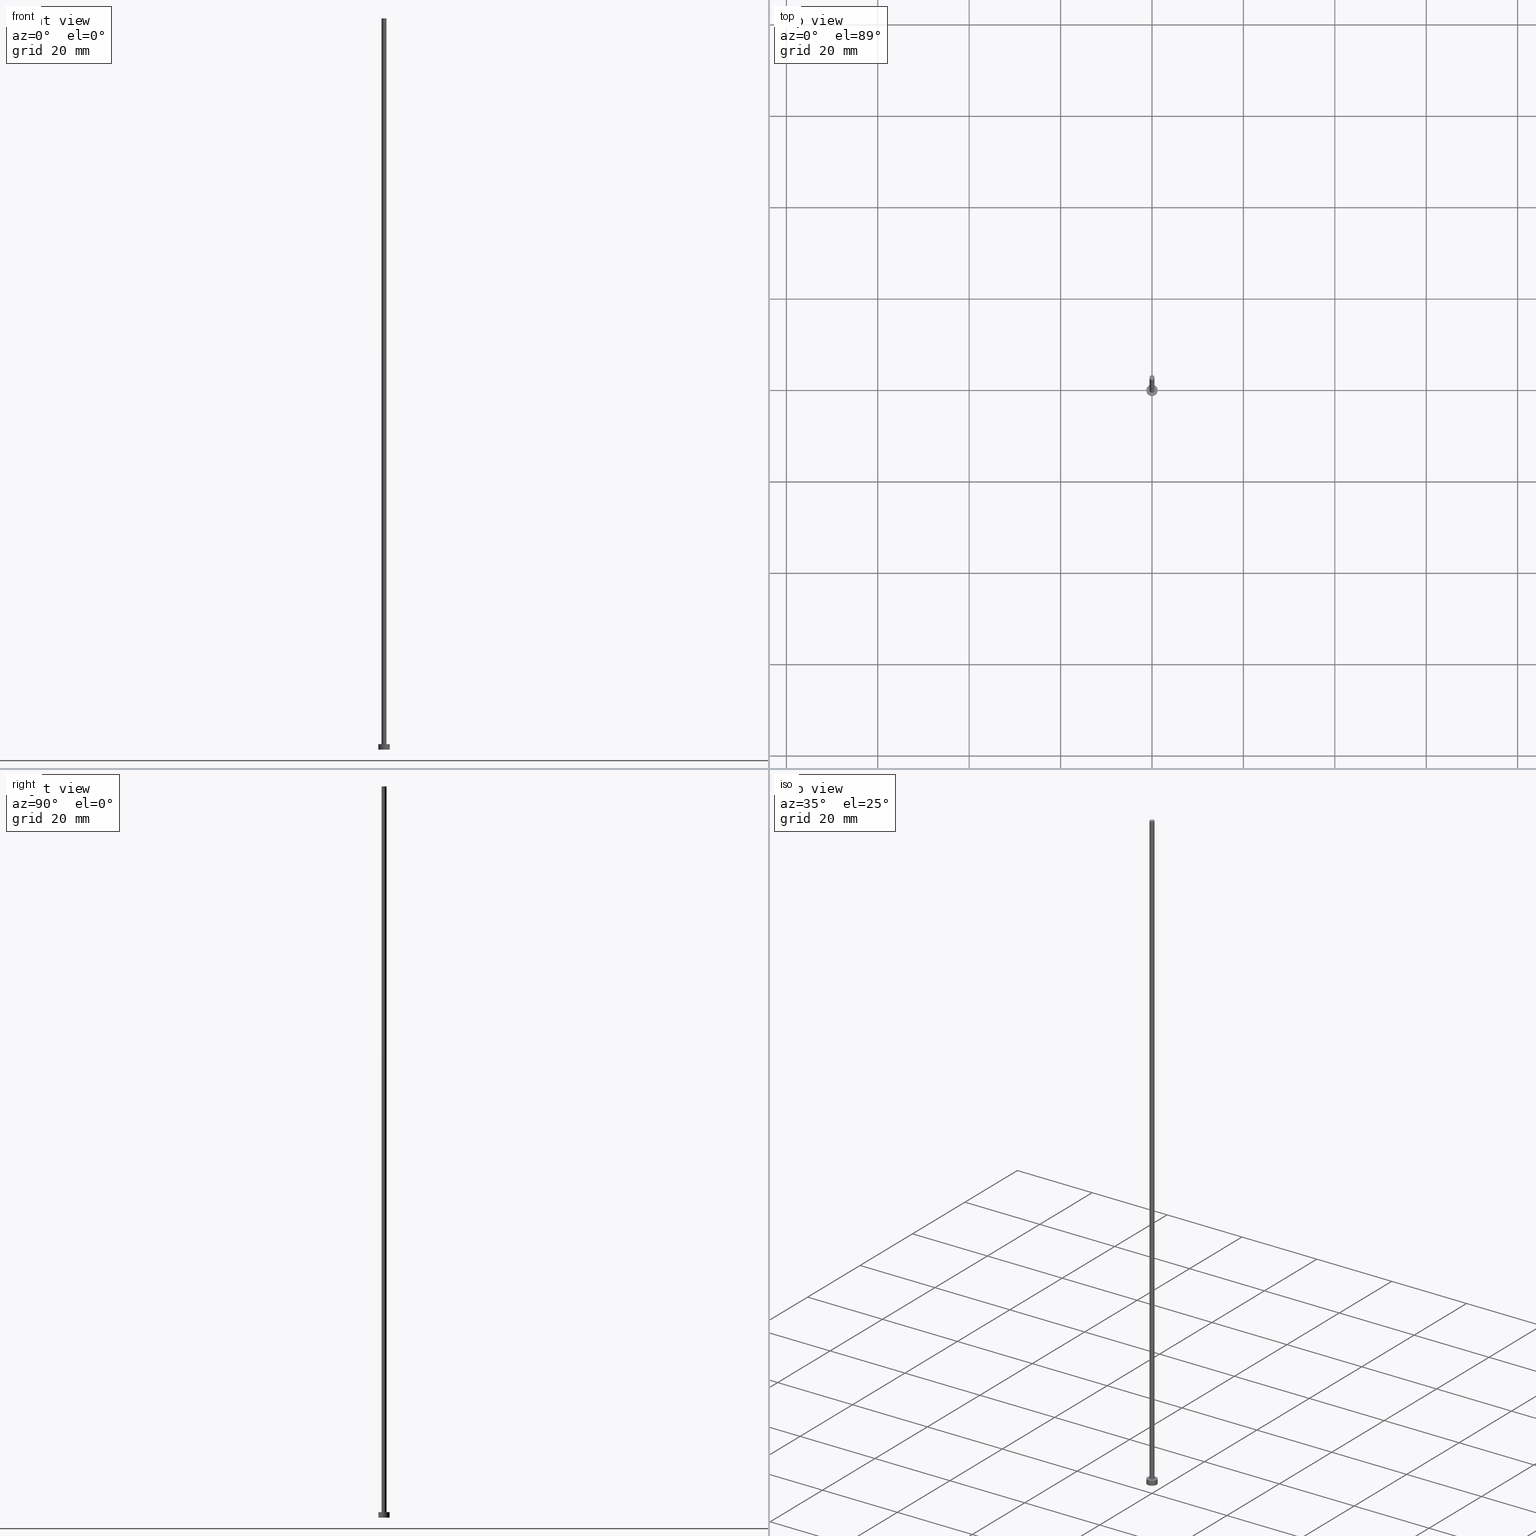
[diagram: canonical four-view strip — front | top / right | iso, engineering-drawing reading convention]
A machine part, canonical four-view strip (front | top / right | iso — engineering-drawing reading convention). The complete STEP part file that produces these views, byte-faithful:
ISO-10303-21;
HEADER;
FILE_DESCRIPTION (( 'STEP AP203' ),
    '1' );
FILE_NAME ('3fdd.STEP',
    '2023-02-12T12:59:40',
    ( '' ),
    ( '' ),
    'SwSTEP 2.0',
    'SolidWorks 2019',
    '' );
FILE_SCHEMA (( 'CONFIG_CONTROL_DESIGN' ));
ENDSEC;

DATA;
#1 = EDGE_CURVE ( 'NONE', #11, #152, #46, .T. ) ;
#2 = ORIENTED_EDGE ( 'NONE', *, *, #198, .F. ) ;
#3 = APPROVAL_STATUS ( 'not_yet_approved' ) ;
#4 = PERSON ( 'NEUR�EN�', 'NEUR�EN�', 'NEUR�EN�', ('NEUR�EN�'), ('NEUR�EN�'), ('NEUR�EN�') ) ;
#5 = MANIFOLD_SOLID_BREP ( 'P�idat vysunut�m3', #92 ) ;
#6 = APPROVAL_DATE_TIME ( #153, #246 ) ;
#7 = APPROVAL_STATUS ( 'not_yet_approved' ) ;
#8 = SECURITY_CLASSIFICATION_LEVEL ( 'unclassified' ) ;
#9 = EDGE_LOOP ( 'NONE', ( #45, #143 ) ) ;
#10 = DIRECTION ( 'NONE',  ( 1.000000000000000000, 0.000000000000000000, 0.000000000000000000 ) ) ;
#11 = VERTEX_POINT ( 'NONE', #234 ) ;
#12 = AXIS2_PLACEMENT_3D ( 'NONE', #184, #169, #216 ) ;
#13 = FACE_OUTER_BOUND ( 'NONE', #147, .T. ) ;
#14 = ADVANCED_FACE ( 'NONE', ( #199 ), #253, .T. ) ;
#15 = AXIS2_PLACEMENT_3D ( 'NONE', #20, #102, #127 ) ;
#16 = VECTOR ( 'NONE', #43, 1000.000000000000000 ) ;
#17 = APPLICATION_PROTOCOL_DEFINITION ( 'international standard', 'config_control_design', 1994, #211 ) ;
#18 = CARTESIAN_POINT ( 'NONE',  ( 1.250000000000000000, 1.530808498934191571E-16, 1.199999999999999956 ) ) ;
#19 = EDGE_LOOP ( 'NONE', ( #2, #224, #161, #158 ) ) ;
#20 = CARTESIAN_POINT ( 'NONE',  ( 0.000000000000000000, 0.000000000000000000, 160.0000000000000284 ) ) ;
#21 = ORIENTED_EDGE ( 'NONE', *, *, #69, .T. ) ;
#22 = CARTESIAN_POINT ( 'NONE',  ( 0.000000000000000000, 0.000000000000000000, 1.199999999999999956 ) ) ;
#23 = APPROVAL_ROLE ( '' ) ;
#24 = ADVANCED_FACE ( 'NONE', ( #200 ), #215, .F. ) ;
#25 = COORDINATED_UNIVERSAL_TIME_OFFSET ( 1, 0, .AHEAD. ) ;
#26 = SECURITY_CLASSIFICATION ( '', '', #8 ) ;
#27 = PERSON_AND_ORGANIZATION ( #4, #134 ) ;
#28 = PRODUCT_DEFINITION_SHAPE ( 'NONE', 'NONE',  #163 ) ;
#29 = AXIS2_PLACEMENT_3D ( 'NONE', #235, #83, #255 ) ;
#30 = CIRCLE ( 'NONE', #182, 1.250000000000000000 ) ;
#31 = ADVANCED_BREP_SHAPE_REPRESENTATION ( '3fdd', ( #5, #170 ), #144 ) ;
#32 = ADVANCED_FACE ( 'NONE', ( #186 ), #142, .T. ) ;
#33 = PERSON_AND_ORGANIZATION ( #4, #134 ) ;
#34 = DIRECTION ( 'NONE',  ( 0.000000000000000000, 0.000000000000000000, 1.000000000000000000 ) ) ;
#35 = VECTOR ( 'NONE', #196, 1000.000000000000000 ) ;
#36 = CARTESIAN_POINT ( 'NONE',  ( 1.250000000000000000, 1.530808498934191571E-16, 1.199999999999999956 ) ) ;
#37 = DESIGN_CONTEXT ( 'detailed design', #52, 'design' ) ;
#38 = DIRECTION ( 'NONE',  ( -0.000000000000000000, -0.000000000000000000, -1.000000000000000000 ) ) ;
#39 = DIRECTION ( 'NONE',  ( 0.000000000000000000, 0.000000000000000000, 1.000000000000000000 ) ) ;
#40 = CC_DESIGN_PERSON_AND_ORGANIZATION_ASSIGNMENT ( #175, #93, ( #26 ) ) ;
#41 = ORIENTED_EDGE ( 'NONE', *, *, #198, .T. ) ;
#42 = CIRCLE ( 'NONE', #192, 0.5500000000000000444 ) ;
#43 = DIRECTION ( 'NONE',  ( -0.000000000000000000, -0.000000000000000000, -1.000000000000000000 ) ) ;
#44 = CC_DESIGN_PERSON_AND_ORGANIZATION_ASSIGNMENT ( #68, #244, ( #163 ) ) ;
#45 = ORIENTED_EDGE ( 'NONE', *, *, #245, .T. ) ;
#46 = LINE ( 'NONE', #130, #35 ) ;
#47 = CC_DESIGN_PERSON_AND_ORGANIZATION_ASSIGNMENT ( #27, #51, ( #119 ) ) ;
#48 = APPROVAL_ROLE ( '' ) ;
#49 = CC_DESIGN_SECURITY_CLASSIFICATION ( #26, ( #119 ) ) ;
#50 = LOCAL_TIME ( 13, 59, 40.00000000000000000, #53 ) ;
#51 = PERSON_AND_ORGANIZATION_ROLE ( 'creator' ) ;
#52 = APPLICATION_CONTEXT ( 'configuration controlled 3d designs of mechanical parts and assemblies' ) ;
#53 = COORDINATED_UNIVERSAL_TIME_OFFSET ( 1, 0, .AHEAD. ) ;
#54 = EDGE_CURVE ( 'NONE', #105, #120, #75, .T. ) ;
#55 = EDGE_LOOP ( 'NONE', ( #168, #249 ) ) ;
#56 = EDGE_CURVE ( 'NONE', #60, #124, #208, .T. ) ;
#57 = CARTESIAN_POINT ( 'NONE',  ( 0.000000000000000000, 0.000000000000000000, 160.0000000000000284 ) ) ;
#58 = PRODUCT_RELATED_PRODUCT_CATEGORY ( 'detail', '', ( #155 ) ) ;
#59 = VERTEX_POINT ( 'NONE', #229 ) ;
#60 = VERTEX_POINT ( 'NONE', #250 ) ;
#61 = CARTESIAN_POINT ( 'NONE',  ( 0.000000000000000000, 0.000000000000000000, 1.199999999999999956 ) ) ;
#62 = DIRECTION ( 'NONE',  ( 1.000000000000000000, 0.000000000000000000, -0.000000000000000000 ) ) ;
#63 = LINE ( 'NONE', #214, #16 ) ;
#64 = APPROVAL_PERSON_ORGANIZATION ( #243, #246, #48 ) ;
#65 = CARTESIAN_POINT ( 'NONE',  ( 0.000000000000000000, 0.000000000000000000, 160.0000000000000284 ) ) ;
#66 = EDGE_CURVE ( 'NONE', #59, #137, #30, .T. ) ;
#67 = APPROVAL ( #7, 'NEUR�EN�' ) ;
#68 = PERSON_AND_ORGANIZATION ( #4, #134 ) ;
#69 = EDGE_CURVE ( 'NONE', #124, #152, #241, .T. ) ;
#70 = ORIENTED_EDGE ( 'NONE', *, *, #151, .F. ) ;
#71 = CARTESIAN_POINT ( 'NONE',  ( 0.5500000000000000444, 6.735557395310442516E-17, 1.199999999999999956 ) ) ;
#72 = CALENDAR_DATE ( 2023, 12, 2 ) ;
#73 = DIRECTION ( 'NONE',  ( 1.000000000000000000, 0.000000000000000000, 0.000000000000000000 ) ) ;
#74 = DIRECTION ( 'NONE',  ( -0.000000000000000000, -0.000000000000000000, -1.000000000000000000 ) ) ;
#75 = CIRCLE ( 'NONE', #218, 1.250000000000000000 ) ;
#76 = ORIENTED_EDGE ( 'NONE', *, *, #1, .T. ) ;
#77 = DIRECTION ( 'NONE',  ( 1.000000000000000000, 0.000000000000000000, -0.000000000000000000 ) ) ;
#78 = CARTESIAN_POINT ( 'NONE',  ( 0.000000000000000000, 0.000000000000000000, 0.000000000000000000 ) ) ;
#79 = ORIENTED_EDGE ( 'NONE', *, *, #56, .T. ) ;
#80 = PERSON_AND_ORGANIZATION ( #4, #134 ) ;
#81 = AXIS2_PLACEMENT_3D ( 'NONE', #126, #104, #62 ) ;
#82 = LOCAL_TIME ( 13, 59, 40.00000000000000000, #189 ) ;
#83 = DIRECTION ( 'NONE',  ( 0.000000000000000000, 0.000000000000000000, 1.000000000000000000 ) ) ;
#84 = CARTESIAN_POINT ( 'NONE',  ( -1.250000000000000000, 0.000000000000000000, 1.199999999999999956 ) ) ;
#85 = CARTESIAN_POINT ( 'NONE',  ( 0.000000000000000000, 0.000000000000000000, 1.199999999999999956 ) ) ;
#86 = APPROVAL ( #112, 'NEUR�EN�' ) ;
#87 = AXIS2_PLACEMENT_3D ( 'NONE', #57, #74, #118 ) ;
#88 = CALENDAR_DATE ( 2023, 12, 2 ) ;
#89 = CYLINDRICAL_SURFACE ( 'NONE', #185, 1.250000000000000000 ) ;
#90 = CALENDAR_DATE ( 2023, 12, 2 ) ;
#91 = DATE_AND_TIME ( #221, #82 ) ;
#92 = CLOSED_SHELL ( 'NONE', ( #106, #140, #177, #190, #24, #14, #32 ) ) ;
#93 = PERSON_AND_ORGANIZATION_ROLE ( 'classification_officer' ) ;
#94 = ORIENTED_EDGE ( 'NONE', *, *, #66, .T. ) ;
#95 = CARTESIAN_POINT ( 'NONE',  ( 0.000000000000000000, 0.000000000000000000, 0.000000000000000000 ) ) ;
#96 = ORIENTED_EDGE ( 'NONE', *, *, #242, .F. ) ;
#97 = AXIS2_PLACEMENT_3D ( 'NONE', #85, #150, #128 ) ;
#98 = AXIS2_PLACEMENT_3D ( 'NONE', #95, #191, #181 ) ;
#99 = EDGE_CURVE ( 'NONE', #137, #59, #206, .T. ) ;
#100 = CARTESIAN_POINT ( 'NONE',  ( 0.000000000000000000, 0.000000000000000000, 160.0000000000000284 ) ) ;
#101 = DIRECTION ( 'NONE',  ( -0.000000000000000000, -0.000000000000000000, -1.000000000000000000 ) ) ;
#102 = DIRECTION ( 'NONE',  ( 0.000000000000000000, 0.000000000000000000, 1.000000000000000000 ) ) ;
#103 = ORIENTED_EDGE ( 'NONE', *, *, #188, .F. ) ;
#104 = DIRECTION ( 'NONE',  ( 0.000000000000000000, 0.000000000000000000, 1.000000000000000000 ) ) ;
#105 = VERTEX_POINT ( 'NONE', #36 ) ;
#106 = ADVANCED_FACE ( 'NONE', ( #13 ), #138, .T. ) ;
#107 = CC_DESIGN_APPROVAL ( #67, ( #163 ) ) ;
#108 = APPROVAL_DATE_TIME ( #204, #86 ) ;
#109 = PERSON_AND_ORGANIZATION_ROLE ( 'design_supplier' ) ;
#110 = CC_DESIGN_APPROVAL ( #246, ( #26 ) ) ;
#111 = ORIENTED_EDGE ( 'NONE', *, *, #151, .T. ) ;
#112 = APPROVAL_STATUS ( 'not_yet_approved' ) ;
#113 = EDGE_CURVE ( 'NONE', #120, #137, #63, .T. ) ;
#114 = VECTOR ( 'NONE', #38, 1000.000000000000000 ) ;
#115 = CC_DESIGN_DATE_AND_TIME_ASSIGNMENT ( #205, #154, ( #163 ) ) ;
#116 = ORIENTED_EDGE ( 'NONE', *, *, #242, .T. ) ;
#117 = DIRECTION ( 'NONE',  ( 0.000000000000000000, 0.000000000000000000, 1.000000000000000000 ) ) ;
#118 = DIRECTION ( 'NONE',  ( -1.000000000000000000, 0.000000000000000000, 0.000000000000000000 ) ) ;
#119 = PRODUCT_DEFINITION_FORMATION_WITH_SPECIFIED_SOURCE ( 'LIBOVOLN�', '', #155, .NOT_KNOWN. ) ;
#120 = VERTEX_POINT ( 'NONE', #84 ) ;
#121 = CARTESIAN_POINT ( 'NONE',  ( 0.000000000000000000, 0.000000000000000000, 0.000000000000000000 ) ) ;
#122 = DIRECTION ( 'NONE',  ( 1.000000000000000000, 0.000000000000000000, 0.000000000000000000 ) ) ;
#123 = DIRECTION ( 'NONE',  ( -0.000000000000000000, -0.000000000000000000, -1.000000000000000000 ) ) ;
#124 = VERTEX_POINT ( 'NONE', #71 ) ;
#125 = MECHANICAL_CONTEXT ( 'NONE', #211, 'mechanical' ) ;
#126 = CARTESIAN_POINT ( 'NONE',  ( 0.000000000000000000, 0.000000000000000000, 0.000000000000000000 ) ) ;
#127 = DIRECTION ( 'NONE',  ( 1.000000000000000000, 0.000000000000000000, 0.000000000000000000 ) ) ;
#128 = DIRECTION ( 'NONE',  ( 1.000000000000000000, 0.000000000000000000, -0.000000000000000000 ) ) ;
#129 = EDGE_LOOP ( 'NONE', ( #166, #96, #76, #213 ) ) ;
#130 = CARTESIAN_POINT ( 'NONE',  ( -0.5500000000000000444, 0.000000000000000000, 160.0000000000000284 ) ) ;
#131 = CALENDAR_DATE ( 2023, 12, 2 ) ;
#132 = FACE_OUTER_BOUND ( 'NONE', #226, .T. ) ;
#133 = ORIENTED_EDGE ( 'NONE', *, *, #69, .F. ) ;
#134 = ORGANIZATION ( 'NEUR�EN�', 'NEUR�EN�', '' ) ;
#135 = APPROVAL_DATE_TIME ( #91, #67 ) ;
#136 = CIRCLE ( 'NONE', #15, 0.5500000000000000444 ) ;
#137 = VERTEX_POINT ( 'NONE', #173 ) ;
#138 = CYLINDRICAL_SURFACE ( 'NONE', #87, 0.5500000000000000444 ) ;
#139 = DIRECTION ( 'NONE',  ( 1.000000000000000000, 0.000000000000000000, 0.000000000000000000 ) ) ;
#140 = ADVANCED_FACE ( 'NONE', ( #132 ), #89, .T. ) ;
#141 = CC_DESIGN_DATE_AND_TIME_ASSIGNMENT ( #223, #174, ( #26 ) ) ;
#142 = PLANE ( 'NONE',  #230 ) ;
#143 = ORIENTED_EDGE ( 'NONE', *, *, #54, .T. ) ;
#144 =( GEOMETRIC_REPRESENTATION_CONTEXT ( 3 ) GLOBAL_UNCERTAINTY_ASSIGNED_CONTEXT ( ( #160 ) ) GLOBAL_UNIT_ASSIGNED_CONTEXT ( ( #238, #217, #176 ) ) REPRESENTATION_CONTEXT ( 'NONE', 'WORKASPACE' ) );
#145 = CC_DESIGN_PERSON_AND_ORGANIZATION_ASSIGNMENT ( #33, #228, ( #155 ) ) ;
#146 = APPLICATION_PROTOCOL_DEFINITION ( 'international standard', 'config_control_design', 1994, #52 ) ;
#147 = EDGE_LOOP ( 'NONE', ( #70, #79, #21, #178 ) ) ;
#148 = AXIS2_PLACEMENT_3D ( 'NONE', #22, #101, #187 ) ;
#149 = AXIS2_PLACEMENT_3D ( 'NONE', #65, #183, #232 ) ;
#150 = DIRECTION ( 'NONE',  ( 0.000000000000000000, 0.000000000000000000, 1.000000000000000000 ) ) ;
#151 = EDGE_CURVE ( 'NONE', #60, #11, #42, .T. ) ;
#152 = VERTEX_POINT ( 'NONE', #162 ) ;
#153 = DATE_AND_TIME ( #131, #50 ) ;
#154 = DATE_TIME_ROLE ( 'creation_date' ) ;
#155 = PRODUCT ( '3fdd', '3fdd', '', ( #125 ) ) ;
#156 = CC_DESIGN_APPROVAL ( #86, ( #119 ) ) ;
#157 = PERSON_AND_ORGANIZATION ( #4, #134 ) ;
#158 = ORIENTED_EDGE ( 'NONE', *, *, #99, .T. ) ;
#159 = DIRECTION ( 'NONE',  ( -1.000000000000000000, 0.000000000000000000, 0.000000000000000000 ) ) ;
#160 = UNCERTAINTY_MEASURE_WITH_UNIT (LENGTH_MEASURE( 1.000000000000000082E-05 ), #238, 'distance_accuracy_value', 'NONE');
#161 = ORIENTED_EDGE ( 'NONE', *, *, #113, .T. ) ;
#162 = CARTESIAN_POINT ( 'NONE',  ( -0.5500000000000000444, 0.000000000000000000, 1.199999999999999956 ) ) ;
#163 = PRODUCT_DEFINITION ( 'NEZN�M�', '', #119, #37 ) ;
#164 = APPROVAL_ROLE ( '' ) ;
#165 = CARTESIAN_POINT ( 'NONE',  ( 0.000000000000000000, 0.000000000000000000, 1.199999999999999956 ) ) ;
#166 = ORIENTED_EDGE ( 'NONE', *, *, #56, .F. ) ;
#167 = EDGE_LOOP ( 'NONE', ( #103, #133 ) ) ;
#168 = ORIENTED_EDGE ( 'NONE', *, *, #99, .F. ) ;
#169 = DIRECTION ( 'NONE',  ( 0.000000000000000000, 0.000000000000000000, 1.000000000000000000 ) ) ;
#170 = AXIS2_PLACEMENT_3D ( 'NONE', #78, #225, #10 ) ;
#171 = COORDINATED_UNIVERSAL_TIME_OFFSET ( 1, 0, .AHEAD. ) ;
#172 = CIRCLE ( 'NONE', #12, 1.250000000000000000 ) ;
#173 = CARTESIAN_POINT ( 'NONE',  ( -1.250000000000000000, 0.000000000000000000, 0.000000000000000000 ) ) ;
#174 = DATE_TIME_ROLE ( 'classification_date' ) ;
#175 = PERSON_AND_ORGANIZATION ( #4, #134 ) ;
#176 =( NAMED_UNIT ( * ) SI_UNIT ( $, .STERADIAN. ) SOLID_ANGLE_UNIT ( ) );
#177 = ADVANCED_FACE ( 'NONE', ( #231 ), #212, .T. ) ;
#178 = ORIENTED_EDGE ( 'NONE', *, *, #1, .F. ) ;
#179 = LOCAL_TIME ( 13, 59, 40.00000000000000000, #25 ) ;
#180 = EDGE_LOOP ( 'NONE', ( #116, #111 ) ) ;
#181 = DIRECTION ( 'NONE',  ( 1.000000000000000000, 0.000000000000000000, 0.000000000000000000 ) ) ;
#182 = AXIS2_PLACEMENT_3D ( 'NONE', #121, #34, #139 ) ;
#183 = DIRECTION ( 'NONE',  ( -0.000000000000000000, -0.000000000000000000, -1.000000000000000000 ) ) ;
#184 = CARTESIAN_POINT ( 'NONE',  ( 0.000000000000000000, 0.000000000000000000, 1.199999999999999956 ) ) ;
#185 = AXIS2_PLACEMENT_3D ( 'NONE', #61, #252, #159 ) ;
#186 = FACE_OUTER_BOUND ( 'NONE', #180, .T. ) ;
#187 = DIRECTION ( 'NONE',  ( -1.000000000000000000, 0.000000000000000000, 0.000000000000000000 ) ) ;
#188 = EDGE_CURVE ( 'NONE', #152, #124, #251, .T. ) ;
#189 = COORDINATED_UNIVERSAL_TIME_OFFSET ( 1, 0, .AHEAD. ) ;
#190 = ADVANCED_FACE ( 'NONE', ( #239, #237 ), #197, .T. ) ;
#191 = DIRECTION ( 'NONE',  ( 0.000000000000000000, 0.000000000000000000, 1.000000000000000000 ) ) ;
#192 = AXIS2_PLACEMENT_3D ( 'NONE', #209, #39, #122 ) ;
#193 = LOCAL_TIME ( 13, 59, 40.00000000000000000, #202 ) ;
#194 = CARTESIAN_POINT ( 'NONE',  ( 0.000000000000000000, 0.000000000000000000, 1.199999999999999956 ) ) ;
#195 = CC_DESIGN_PERSON_AND_ORGANIZATION_ASSIGNMENT ( #220, #109, ( #119 ) ) ;
#196 = DIRECTION ( 'NONE',  ( -0.000000000000000000, -0.000000000000000000, -1.000000000000000000 ) ) ;
#197 = PLANE ( 'NONE',  #97 ) ;
#198 = EDGE_CURVE ( 'NONE', #105, #59, #219, .T. ) ;
#199 = FACE_OUTER_BOUND ( 'NONE', #129, .T. ) ;
#200 = FACE_OUTER_BOUND ( 'NONE', #55, .T. ) ;
#201 = ORIENTED_EDGE ( 'NONE', *, *, #54, .F. ) ;
#202 = COORDINATED_UNIVERSAL_TIME_OFFSET ( 1, 0, .AHEAD. ) ;
#203 = SHAPE_DEFINITION_REPRESENTATION ( #28, #31 ) ;
#204 = DATE_AND_TIME ( #90, #254 ) ;
#205 = DATE_AND_TIME ( #88, #193 ) ;
#206 = CIRCLE ( 'NONE', #98, 1.250000000000000000 ) ;
#207 = DIRECTION ( 'NONE',  ( 1.000000000000000000, 0.000000000000000000, 0.000000000000000000 ) ) ;
#208 = LINE ( 'NONE', #227, #114 ) ;
#209 = CARTESIAN_POINT ( 'NONE',  ( 0.000000000000000000, 0.000000000000000000, 160.0000000000000284 ) ) ;
#210 = DIRECTION ( 'NONE',  ( 0.000000000000000000, 0.000000000000000000, 1.000000000000000000 ) ) ;
#211 = APPLICATION_CONTEXT ( 'configuration controlled 3d designs of mechanical parts and assemblies' ) ;
#212 = CYLINDRICAL_SURFACE ( 'NONE', #148, 1.250000000000000000 ) ;
#213 = ORIENTED_EDGE ( 'NONE', *, *, #188, .T. ) ;
#214 = CARTESIAN_POINT ( 'NONE',  ( -1.250000000000000000, 0.000000000000000000, 1.199999999999999956 ) ) ;
#215 = PLANE ( 'NONE',  #81 ) ;
#216 = DIRECTION ( 'NONE',  ( 1.000000000000000000, 0.000000000000000000, 0.000000000000000000 ) ) ;
#217 =( NAMED_UNIT ( * ) PLANE_ANGLE_UNIT ( ) SI_UNIT ( $, .RADIAN. ) );
#218 = AXIS2_PLACEMENT_3D ( 'NONE', #165, #233, #207 ) ;
#219 = LINE ( 'NONE', #18, #240 ) ;
#220 = PERSON_AND_ORGANIZATION ( #4, #134 ) ;
#221 = CALENDAR_DATE ( 2023, 12, 2 ) ;
#222 = APPROVAL_PERSON_ORGANIZATION ( #80, #67, #164 ) ;
#223 = DATE_AND_TIME ( #72, #179 ) ;
#224 = ORIENTED_EDGE ( 'NONE', *, *, #245, .F. ) ;
#225 = DIRECTION ( 'NONE',  ( 0.000000000000000000, 0.000000000000000000, 1.000000000000000000 ) ) ;
#226 = EDGE_LOOP ( 'NONE', ( #201, #41, #94, #236 ) ) ;
#227 = CARTESIAN_POINT ( 'NONE',  ( 0.5500000000000000444, 6.735557395310442516E-17, 160.0000000000000284 ) ) ;
#228 = PERSON_AND_ORGANIZATION_ROLE ( 'design_owner' ) ;
#229 = CARTESIAN_POINT ( 'NONE',  ( 1.250000000000000000, 1.530808498934191571E-16, 0.000000000000000000 ) ) ;
#230 = AXIS2_PLACEMENT_3D ( 'NONE', #100, #210, #77 ) ;
#231 = FACE_OUTER_BOUND ( 'NONE', #19, .T. ) ;
#232 = DIRECTION ( 'NONE',  ( -1.000000000000000000, 0.000000000000000000, 0.000000000000000000 ) ) ;
#233 = DIRECTION ( 'NONE',  ( 0.000000000000000000, 0.000000000000000000, 1.000000000000000000 ) ) ;
#234 = CARTESIAN_POINT ( 'NONE',  ( -0.5500000000000000444, 0.000000000000000000, 160.0000000000000284 ) ) ;
#235 = CARTESIAN_POINT ( 'NONE',  ( 0.000000000000000000, 0.000000000000000000, 1.199999999999999956 ) ) ;
#236 = ORIENTED_EDGE ( 'NONE', *, *, #113, .F. ) ;
#237 = FACE_OUTER_BOUND ( 'NONE', #9, .T. ) ;
#238 =( LENGTH_UNIT ( ) NAMED_UNIT ( * ) SI_UNIT ( .MILLI., .METRE. ) );
#239 = FACE_BOUND ( 'NONE', #167, .T. ) ;
#240 = VECTOR ( 'NONE', #123, 1000.000000000000000 ) ;
#241 = CIRCLE ( 'NONE', #247, 0.5500000000000000444 ) ;
#242 = EDGE_CURVE ( 'NONE', #11, #60, #136, .T. ) ;
#243 = PERSON_AND_ORGANIZATION ( #4, #134 ) ;
#244 = PERSON_AND_ORGANIZATION_ROLE ( 'creator' ) ;
#245 = EDGE_CURVE ( 'NONE', #120, #105, #172, .T. ) ;
#246 = APPROVAL ( #3, 'NEUR�EN�' ) ;
#247 = AXIS2_PLACEMENT_3D ( 'NONE', #194, #117, #73 ) ;
#248 = APPROVAL_PERSON_ORGANIZATION ( #157, #86, #23 ) ;
#249 = ORIENTED_EDGE ( 'NONE', *, *, #66, .F. ) ;
#250 = CARTESIAN_POINT ( 'NONE',  ( 0.5500000000000000444, 6.735557395310442516E-17, 160.0000000000000284 ) ) ;
#251 = CIRCLE ( 'NONE', #29, 0.5500000000000000444 ) ;
#252 = DIRECTION ( 'NONE',  ( -0.000000000000000000, -0.000000000000000000, -1.000000000000000000 ) ) ;
#253 = CYLINDRICAL_SURFACE ( 'NONE', #149, 0.5500000000000000444 ) ;
#254 = LOCAL_TIME ( 13, 59, 40.00000000000000000, #171 ) ;
#255 = DIRECTION ( 'NONE',  ( 1.000000000000000000, 0.000000000000000000, 0.000000000000000000 ) ) ;
ENDSEC;
END-ISO-10303-21;
